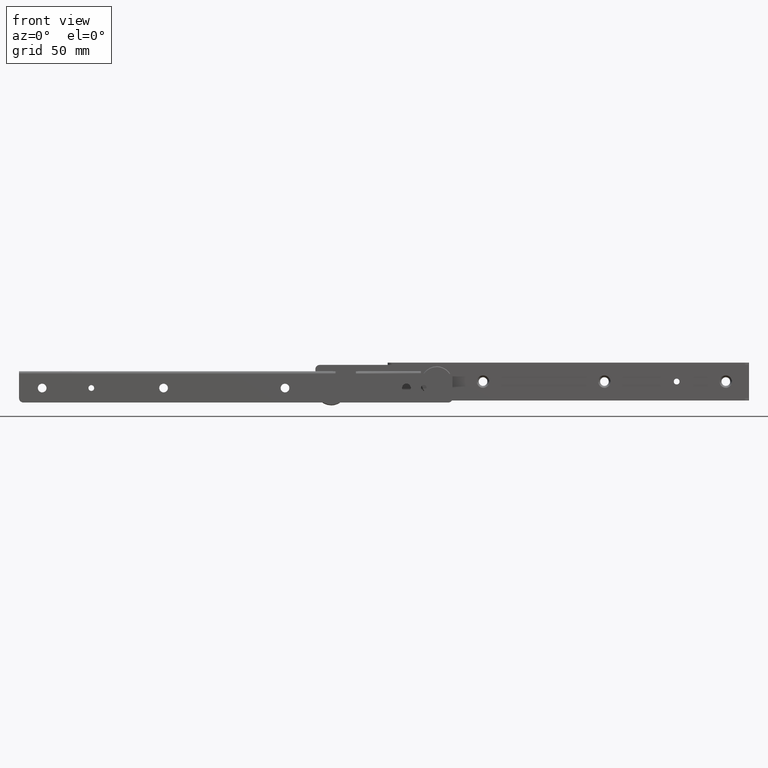
[diagram: clean part render]
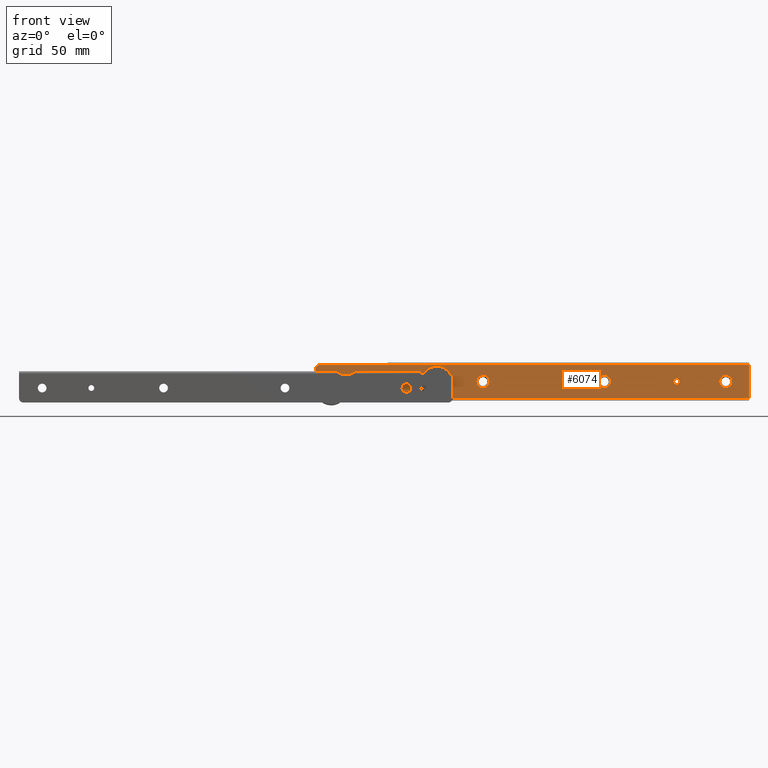
[diagram: same view with one face highlighted and labeled with its STEP entity id]
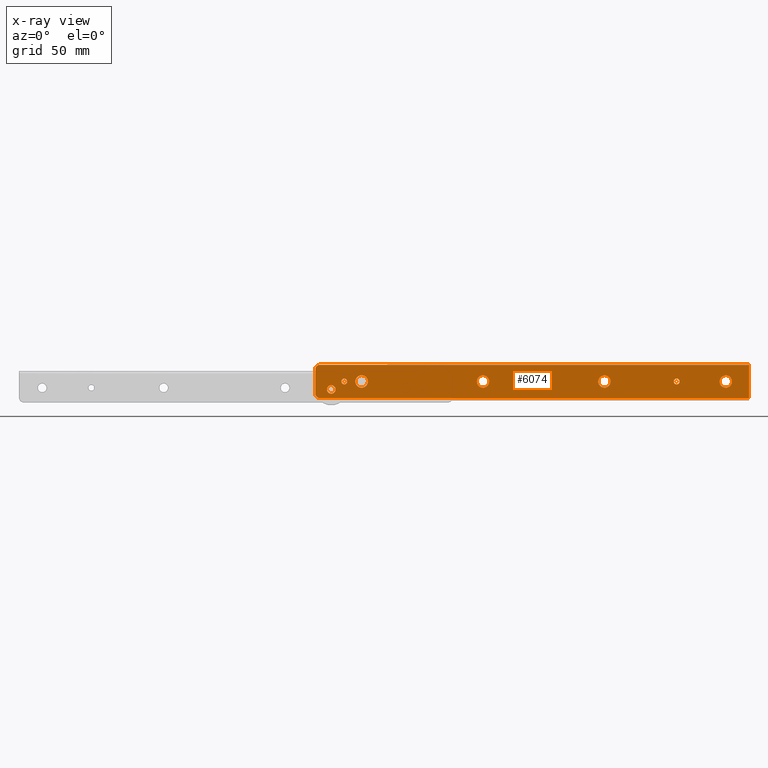
[diagram: x-ray of the same camera — body ghosted, the highlighted face saturated]
A machine part, front view. The second image highlights one B-rep face of the part: STEP entity #6074.
The next image is the same camera in x-ray: the body ghosted, the highlighted face saturated — about 0% of this face is hidden behind the body in this view.
In plain terms, the highlighted face is a freeform B-spline surface patch.
Its self-contained STEP definition (entity closure, byte-faithful):
#3986=CARTESIAN_POINT('',(27.733255280558421,-1.600000000138738,-7.633750409917559));
#3987=VERTEX_POINT('',#3986);
#3993=CARTESIAN_POINT('',(32.0,-1.599999999999910,-11.399999999999800));
#3994=VERTEX_POINT('',#3993);
#3995=CARTESIAN_POINT('',(32.0,-1.599999999999910,-11.399999999999800));
#3996=CARTESIAN_POINT('',(28.204396021076221,-1.599999999999910,-11.399999999999800));
#3997=CARTESIAN_POINT('',(27.733255280558421,-1.600000000138737,-7.633750409917559));
#4005=(BOUNDED_CURVE()B_SPLINE_CURVE(2,(#3995,#3996,#3997),.UNSPECIFIED.,.F.,.U.)B_SPLINE_CURVE_WITH_KNOTS((3,3),(0.500000000000000,0.728526070953370),.UNSPECIFIED.)CURVE()GEOMETRIC_REPRESENTATION_ITEM()RATIONAL_B_SPLINE_CURVE((1.0,0.732265053982704,0.954005430127370))REPRESENTATION_ITEM(''));
#4006=EDGE_CURVE('',#3994,#3987,#4005,.T.);
#4008=CARTESIAN_POINT('',(36.299836270378997,-1.600000001592581,-7.062475886927327));
#4009=VERTEX_POINT('',#4008);
#4010=CARTESIAN_POINT('',(36.299836270378997,-1.600000001592581,-7.062475886927328));
#4011=CARTESIAN_POINT('',(36.299999999999997,-1.599999999999910,-7.081237581052015));
#4012=CARTESIAN_POINT('',(36.299999999999997,-1.599999999999910,-7.099999999999799));
#4013=CARTESIAN_POINT('',(36.299999999999997,-1.599999999999911,-11.399999999999798));
#4014=CARTESIAN_POINT('',(32.0,-1.599999999999910,-11.399999999999800));
#4022=(BOUNDED_CURVE()B_SPLINE_CURVE(2,(#4010,#4011,#4012,#4013,#4014),.UNSPECIFIED.,.F.,.U.)B_SPLINE_CURVE_WITH_KNOTS((3,2,3),(0.248460104811452,0.250000000000000,0.500000000000000),.UNSPECIFIED.)CURVE()GEOMETRIC_REPRESENTATION_ITEM()RATIONAL_B_SPLINE_CURVE((0.996414026125027,0.998195900566363,1.0,0.707106781186547,1.0))REPRESENTATION_ITEM(''));
#4023=EDGE_CURVE('',#4009,#3994,#4022,.T.);
#4103=CARTESIAN_POINT('',(32.0,-1.599999999999910,-2.799999999999799));
#4104=VERTEX_POINT('',#4103);
#4105=CARTESIAN_POINT('',(32.0,-1.599999999999910,-2.799999999999799));
#4106=CARTESIAN_POINT('',(36.262638184901519,-1.599999999999911,-2.799999999999799));
#4107=CARTESIAN_POINT('',(36.299836270378997,-1.600000001592581,-7.062475886927328));
#4115=(BOUNDED_CURVE()B_SPLINE_CURVE(2,(#4105,#4106,#4107),.UNSPECIFIED.,.F.,.U.)B_SPLINE_CURVE_WITH_KNOTS((3,3),(0.0,0.248460104811452),.UNSPECIFIED.)CURVE()GEOMETRIC_REPRESENTATION_ITEM()RATIONAL_B_SPLINE_CURVE((1.0,0.708910880620184,0.996414026125027))REPRESENTATION_ITEM(''));
#4116=EDGE_CURVE('',#4104,#4009,#4115,.T.);
#4118=CARTESIAN_POINT('',(27.733255280558421,-1.600000000138738,-7.633750409917559));
#4119=CARTESIAN_POINT('',(27.700000000000003,-1.599999999999910,-7.367911189365561));
#4120=CARTESIAN_POINT('',(27.699999999999999,-1.599999999999910,-7.099999999999799));
#4121=CARTESIAN_POINT('',(27.700000000000006,-1.599999999999911,-2.799999999999800));
#4122=CARTESIAN_POINT('',(32.0,-1.599999999999910,-2.799999999999799));
#4130=(BOUNDED_CURVE()B_SPLINE_CURVE(2,(#4118,#4119,#4120,#4121,#4122),.UNSPECIFIED.,.F.,.U.)B_SPLINE_CURVE_WITH_KNOTS((3,2,3),(0.728526070953371,0.750000000000000,1.0),.UNSPECIFIED.)CURVE()GEOMETRIC_REPRESENTATION_ITEM()RATIONAL_B_SPLINE_CURVE((0.954005430127371,0.974841727203844,1.0,0.707106781186547,1.0))REPRESENTATION_ITEM(''));
#4131=EDGE_CURVE('',#3987,#4104,#4130,.T.);
#4172=CARTESIAN_POINT('',(111.733255280558400,-1.600000000138738,-7.633750409917761));
#4173=VERTEX_POINT('',#4172);
#4179=CARTESIAN_POINT('',(116.0,-1.599999999999910,-11.400000000000000));
#4180=VERTEX_POINT('',#4179);
#4181=CARTESIAN_POINT('',(116.0,-1.599999999999910,-11.400000000000000));
#4182=CARTESIAN_POINT('',(112.204396021076210,-1.599999999999910,-11.399999999999999));
#4183=CARTESIAN_POINT('',(111.733255280558450,-1.600000000138738,-7.633750409917761));
#4191=(BOUNDED_CURVE()B_SPLINE_CURVE(2,(#4181,#4182,#4183),.UNSPECIFIED.,.F.,.U.)B_SPLINE_CURVE_WITH_KNOTS((3,3),(0.500000000000000,0.728526070953370),.UNSPECIFIED.)CURVE()GEOMETRIC_REPRESENTATION_ITEM()RATIONAL_B_SPLINE_CURVE((1.0,0.732265053982704,0.954005430127370))REPRESENTATION_ITEM(''));
#4192=EDGE_CURVE('',#4180,#4173,#4191,.T.);
#4194=CARTESIAN_POINT('',(120.299836270379000,-1.600000001592574,-7.062475886927530));
#4195=VERTEX_POINT('',#4194);
#4196=CARTESIAN_POINT('',(120.299836270378990,-1.600000001592575,-7.062475886927530));
#4197=CARTESIAN_POINT('',(120.299999999999970,-1.599999999999910,-7.081237581052218));
#4198=CARTESIAN_POINT('',(120.300000000000000,-1.599999999999910,-7.100000000000001));
#4199=CARTESIAN_POINT('',(120.299999999999980,-1.599999999999911,-11.399999999999999));
#4200=CARTESIAN_POINT('',(116.0,-1.599999999999910,-11.400000000000000));
#4208=(BOUNDED_CURVE()B_SPLINE_CURVE(2,(#4196,#4197,#4198,#4199,#4200),.UNSPECIFIED.,.F.,.U.)B_SPLINE_CURVE_WITH_KNOTS((3,2,3),(0.248460104811452,0.250000000000000,0.500000000000000),.UNSPECIFIED.)CURVE()GEOMETRIC_REPRESENTATION_ITEM()RATIONAL_B_SPLINE_CURVE((0.996414026125027,0.998195900566364,1.0,0.707106781186547,1.0))REPRESENTATION_ITEM(''));
#4209=EDGE_CURVE('',#4195,#4180,#4208,.T.);
#4289=CARTESIAN_POINT('',(116.0,-1.599999999999910,-2.800000000000000));
#4290=VERTEX_POINT('',#4289);
#4291=CARTESIAN_POINT('',(116.0,-1.599999999999910,-2.800000000000000));
#4292=CARTESIAN_POINT('',(120.262638184901530,-1.599999999999911,-2.800000000000001));
#4293=CARTESIAN_POINT('',(120.299836270379020,-1.600000001592574,-7.062475886927530));
#4301=(BOUNDED_CURVE()B_SPLINE_CURVE(2,(#4291,#4292,#4293),.UNSPECIFIED.,.F.,.U.)B_SPLINE_CURVE_WITH_KNOTS((3,3),(0.0,0.248460104811452),.UNSPECIFIED.)CURVE()GEOMETRIC_REPRESENTATION_ITEM()RATIONAL_B_SPLINE_CURVE((1.0,0.708910880620184,0.996414026125027))REPRESENTATION_ITEM(''));
#4302=EDGE_CURVE('',#4290,#4195,#4301,.T.);
#4304=CARTESIAN_POINT('',(111.733255280558420,-1.600000000138738,-7.633750409917761));
#4305=CARTESIAN_POINT('',(111.700000000000030,-1.599999999999910,-7.367911189365764));
#4306=CARTESIAN_POINT('',(111.700000000000000,-1.599999999999910,-7.100000000000001));
#4307=CARTESIAN_POINT('',(111.699999999999990,-1.599999999999911,-2.800000000000000));
#4308=CARTESIAN_POINT('',(116.0,-1.599999999999910,-2.800000000000000));
#4316=(BOUNDED_CURVE()B_SPLINE_CURVE(2,(#4304,#4305,#4306,#4307,#4308),.UNSPECIFIED.,.F.,.U.)B_SPLINE_CURVE_WITH_KNOTS((3,2,3),(0.728526070953370,0.750000000000000,1.0),.UNSPECIFIED.)CURVE()GEOMETRIC_REPRESENTATION_ITEM()RATIONAL_B_SPLINE_CURVE((0.954005430127371,0.974841727203844,1.0,0.707106781186547,1.0))REPRESENTATION_ITEM(''));
#4317=EDGE_CURVE('',#4173,#4290,#4316,.T.);
#4358=CARTESIAN_POINT('',(195.733255280558410,-1.600000000138730,-7.633750409917758));
#4359=VERTEX_POINT('',#4358);
#4365=CARTESIAN_POINT('',(200.0,-1.599999999999910,-11.400000000000000));
#4366=VERTEX_POINT('',#4365);
#4367=CARTESIAN_POINT('',(200.0,-1.599999999999910,-11.400000000000000));
#4368=CARTESIAN_POINT('',(196.204396021076290,-1.599999999999910,-11.399999999999999));
#4369=CARTESIAN_POINT('',(195.733255280558380,-1.600000000138730,-7.633750409917758));
#4377=(BOUNDED_CURVE()B_SPLINE_CURVE(2,(#4367,#4368,#4369),.UNSPECIFIED.,.F.,.U.)B_SPLINE_CURVE_WITH_KNOTS((3,3),(0.500000000000000,0.728526070953370),.UNSPECIFIED.)CURVE()GEOMETRIC_REPRESENTATION_ITEM()RATIONAL_B_SPLINE_CURVE((1.0,0.732265053982704,0.954005430127370))REPRESENTATION_ITEM(''));
#4378=EDGE_CURVE('',#4366,#4359,#4377,.T.);
#4380=CARTESIAN_POINT('',(204.299836270378990,-1.600000001592586,-7.062475886927528));
#4381=VERTEX_POINT('',#4380);
#4382=CARTESIAN_POINT('',(204.299836270379050,-1.600000001592586,-7.062475886927528));
#4383=CARTESIAN_POINT('',(204.300000000000070,-1.599999999999910,-7.081237581052217));
#4384=CARTESIAN_POINT('',(204.300000000000010,-1.599999999999910,-7.100000000000001));
#4385=CARTESIAN_POINT('',(204.300000000000100,-1.599999999999911,-11.399999999999999));
#4386=CARTESIAN_POINT('',(200.0,-1.599999999999910,-11.400000000000000));
#4394=(BOUNDED_CURVE()B_SPLINE_CURVE(2,(#4382,#4383,#4384,#4385,#4386),.UNSPECIFIED.,.F.,.U.)B_SPLINE_CURVE_WITH_KNOTS((3,2,3),(0.248460104811452,0.250000000000000,0.500000000000000),.UNSPECIFIED.)CURVE()GEOMETRIC_REPRESENTATION_ITEM()RATIONAL_B_SPLINE_CURVE((0.996414026125027,0.998195900566363,1.0,0.707106781186547,1.0))REPRESENTATION_ITEM(''));
#4395=EDGE_CURVE('',#4381,#4366,#4394,.T.);
#4475=CARTESIAN_POINT('',(200.0,-1.599999999999910,-2.800000000000000));
#4476=VERTEX_POINT('',#4475);
#4477=CARTESIAN_POINT('',(200.0,-1.599999999999910,-2.800000000000000));
#4478=CARTESIAN_POINT('',(204.262638184901590,-1.599999999999911,-2.800000000000001));
#4479=CARTESIAN_POINT('',(204.299836270379050,-1.600000001592586,-7.062475886927528));
#4487=(BOUNDED_CURVE()B_SPLINE_CURVE(2,(#4477,#4478,#4479),.UNSPECIFIED.,.F.,.U.)B_SPLINE_CURVE_WITH_KNOTS((3,3),(0.0,0.248460104811452),.UNSPECIFIED.)CURVE()GEOMETRIC_REPRESENTATION_ITEM()RATIONAL_B_SPLINE_CURVE((1.0,0.708910880620184,0.996414026125027))REPRESENTATION_ITEM(''));
#4488=EDGE_CURVE('',#4476,#4381,#4487,.T.);
#4490=CARTESIAN_POINT('',(195.733255280558380,-1.600000000138730,-7.633750409917758));
#4491=CARTESIAN_POINT('',(195.700000000000020,-1.599999999999910,-7.367911189365762));
#4492=CARTESIAN_POINT('',(195.699999999999990,-1.599999999999910,-7.100000000000001));
#4493=CARTESIAN_POINT('',(195.699999999999960,-1.599999999999911,-2.800000000000000));
#4494=CARTESIAN_POINT('',(200.0,-1.599999999999910,-2.800000000000000));
#4502=(BOUNDED_CURVE()B_SPLINE_CURVE(2,(#4490,#4491,#4492,#4493,#4494),.UNSPECIFIED.,.F.,.U.)B_SPLINE_CURVE_WITH_KNOTS((3,2,3),(0.728526070953371,0.750000000000000,1.0),.UNSPECIFIED.)CURVE()GEOMETRIC_REPRESENTATION_ITEM()RATIONAL_B_SPLINE_CURVE((0.954005430127371,0.974841727203844,1.0,0.707106781186547,1.0))REPRESENTATION_ITEM(''));
#4503=EDGE_CURVE('',#4359,#4476,#4502,.T.);
#4544=CARTESIAN_POINT('',(279.733255280558410,-1.600000000138756,-7.633750409917766));
#4545=VERTEX_POINT('',#4544);
#4551=CARTESIAN_POINT('',(284.0,-1.599999999999910,-11.400000000000000));
#4552=VERTEX_POINT('',#4551);
#4553=CARTESIAN_POINT('',(284.0,-1.599999999999910,-11.400000000000000));
#4554=CARTESIAN_POINT('',(280.204396021076210,-1.599999999999910,-11.399999999999999));
#4555=CARTESIAN_POINT('',(279.733255280558300,-1.600000000138756,-7.633750409917766));
#4563=(BOUNDED_CURVE()B_SPLINE_CURVE(2,(#4553,#4554,#4555),.UNSPECIFIED.,.F.,.U.)B_SPLINE_CURVE_WITH_KNOTS((3,3),(0.500000000000000,0.728526070953370),.UNSPECIFIED.)CURVE()GEOMETRIC_REPRESENTATION_ITEM()RATIONAL_B_SPLINE_CURVE((1.0,0.732265053982704,0.954005430127370))REPRESENTATION_ITEM(''));
#4564=EDGE_CURVE('',#4552,#4545,#4563,.T.);
#4566=CARTESIAN_POINT('',(288.299836270379100,-1.600000001592579,-7.062475886927529));
#4567=VERTEX_POINT('',#4566);
#4568=CARTESIAN_POINT('',(288.299836270379050,-1.600000001592580,-7.062475886927529));
#4569=CARTESIAN_POINT('',(288.299999999999950,-1.599999999999910,-7.081237581052218));
#4570=CARTESIAN_POINT('',(288.300000000000010,-1.599999999999910,-7.100000000000001));
#4571=CARTESIAN_POINT('',(288.299999999999950,-1.599999999999911,-11.399999999999999));
#4572=CARTESIAN_POINT('',(284.0,-1.599999999999910,-11.400000000000000));
#4580=(BOUNDED_CURVE()B_SPLINE_CURVE(2,(#4568,#4569,#4570,#4571,#4572),.UNSPECIFIED.,.F.,.U.)B_SPLINE_CURVE_WITH_KNOTS((3,2,3),(0.248460104811452,0.250000000000000,0.500000000000000),.UNSPECIFIED.)CURVE()GEOMETRIC_REPRESENTATION_ITEM()RATIONAL_B_SPLINE_CURVE((0.996414026125027,0.998195900566364,1.0,0.707106781186547,1.0))REPRESENTATION_ITEM(''));
#4581=EDGE_CURVE('',#4567,#4552,#4580,.T.);
#4661=CARTESIAN_POINT('',(284.0,-1.599999999999910,-2.800000000000000));
#4662=VERTEX_POINT('',#4661);
#4663=CARTESIAN_POINT('',(284.0,-1.599999999999910,-2.800000000000000));
#4664=CARTESIAN_POINT('',(288.262638184901450,-1.599999999999911,-2.800000000000001));
#4665=CARTESIAN_POINT('',(288.299836270379100,-1.600000001592579,-7.062475886927529));
#4673=(BOUNDED_CURVE()B_SPLINE_CURVE(2,(#4663,#4664,#4665),.UNSPECIFIED.,.F.,.U.)B_SPLINE_CURVE_WITH_KNOTS((3,3),(0.0,0.248460104811452),.UNSPECIFIED.)CURVE()GEOMETRIC_REPRESENTATION_ITEM()RATIONAL_B_SPLINE_CURVE((1.0,0.708910880620184,0.996414026125027))REPRESENTATION_ITEM(''));
#4674=EDGE_CURVE('',#4662,#4567,#4673,.T.);
#4676=CARTESIAN_POINT('',(279.733255280558410,-1.600000000138756,-7.633750409917766));
#4677=CARTESIAN_POINT('',(279.699999999999870,-1.599999999999910,-7.367911189365770));
#4678=CARTESIAN_POINT('',(279.699999999999870,-1.599999999999910,-7.100000000000001));
#4679=CARTESIAN_POINT('',(279.699999999999990,-1.599999999999911,-2.800000000000000));
#4680=CARTESIAN_POINT('',(284.0,-1.599999999999910,-2.800000000000000));
#4688=(BOUNDED_CURVE()B_SPLINE_CURVE(2,(#4676,#4677,#4678,#4679,#4680),.UNSPECIFIED.,.F.,.U.)B_SPLINE_CURVE_WITH_KNOTS((3,2,3),(0.728526070953370,0.750000000000000,1.0),.UNSPECIFIED.)CURVE()GEOMETRIC_REPRESENTATION_ITEM()RATIONAL_B_SPLINE_CURVE((0.954005430127370,0.974841727203843,1.0,0.707106781186547,1.0))REPRESENTATION_ITEM(''));
#4689=EDGE_CURVE('',#4545,#4662,#4688,.T.);
#4730=CARTESIAN_POINT('',(8.072814670328325,-1.599999999999935,-12.966177615037809));
#4731=VERTEX_POINT('',#4730);
#4737=CARTESIAN_POINT('',(11.0,-1.599999999999935,-15.549999999999800));
#4738=VERTEX_POINT('',#4737);
#4739=CARTESIAN_POINT('',(11.0,-1.599999999999935,-15.549999999999800));
#4740=CARTESIAN_POINT('',(8.396039145519250,-1.599999999999935,-15.549999999999793));
#4741=CARTESIAN_POINT('',(8.072814670328325,-1.599999999999935,-12.966177615037806));
#4749=(BOUNDED_CURVE()B_SPLINE_CURVE(2,(#4739,#4740,#4741),.UNSPECIFIED.,.F.,.U.)B_SPLINE_CURVE_WITH_KNOTS((3,3),(0.500000000000000,0.728526070003485),.UNSPECIFIED.)CURVE()GEOMETRIC_REPRESENTATION_ITEM()RATIONAL_B_SPLINE_CURVE((1.0,0.732265055095563,0.954005428284011))REPRESENTATION_ITEM(''));
#4750=EDGE_CURVE('',#4738,#4731,#4749,.T.);
#4752=CARTESIAN_POINT('',(13.949887672999830,-1.599999999999935,-12.574256715756380));
#4753=VERTEX_POINT('',#4752);
#4754=CARTESIAN_POINT('',(13.949887672999830,-1.599999999999935,-12.574256715756375));
#4755=CARTESIAN_POINT('',(13.950000000000001,-1.599999999999935,-12.587128110555254));
#4756=CARTESIAN_POINT('',(13.949999999999999,-1.599999999999935,-12.599999999999801));
#4757=CARTESIAN_POINT('',(13.949999999999999,-1.599999999999935,-15.549999999999795));
#4758=CARTESIAN_POINT('',(11.0,-1.599999999999935,-15.549999999999800));
#4766=(BOUNDED_CURVE()B_SPLINE_CURVE(2,(#4754,#4755,#4756,#4757,#4758),.UNSPECIFIED.,.F.,.U.)B_SPLINE_CURVE_WITH_KNOTS((3,2,3),(0.248460105124835,0.250000000000000,0.500000000000000),.UNSPECIFIED.)CURVE()GEOMETRIC_REPRESENTATION_ITEM()RATIONAL_B_SPLINE_CURVE((0.996414026850282,0.998195900933514,1.0,0.707106781186548,1.0))REPRESENTATION_ITEM(''));
#4767=EDGE_CURVE('',#4753,#4738,#4766,.T.);
#4847=CARTESIAN_POINT('',(11.0,-1.599999999999935,-9.649999999999800));
#4848=VERTEX_POINT('',#4847);
#4849=CARTESIAN_POINT('',(11.0,-1.599999999999935,-9.649999999999800));
#4850=CARTESIAN_POINT('',(13.924368062286664,-1.599999999999935,-9.649999999999798));
#4851=CARTESIAN_POINT('',(13.949887672999830,-1.599999999999935,-12.574256715756375));
#4859=(BOUNDED_CURVE()B_SPLINE_CURVE(2,(#4849,#4850,#4851),.UNSPECIFIED.,.F.,.U.)B_SPLINE_CURVE_WITH_KNOTS((3,3),(0.0,0.248460105124835),.UNSPECIFIED.)CURVE()GEOMETRIC_REPRESENTATION_ITEM()RATIONAL_B_SPLINE_CURVE((1.0,0.708910880253034,0.996414026850282))REPRESENTATION_ITEM(''));
#4860=EDGE_CURVE('',#4848,#4753,#4859,.T.);
#4862=CARTESIAN_POINT('',(8.072814670328325,-1.599999999999935,-12.966177615037807));
#4863=CARTESIAN_POINT('',(8.050000000000001,-1.599999999999935,-12.783799545230332));
#4864=CARTESIAN_POINT('',(8.050000000000001,-1.599999999999935,-12.599999999999801));
#4865=CARTESIAN_POINT('',(8.050000000000001,-1.599999999999935,-9.649999999999800));
#4866=CARTESIAN_POINT('',(11.0,-1.599999999999935,-9.649999999999800));
#4874=(BOUNDED_CURVE()B_SPLINE_CURVE(2,(#4862,#4863,#4864,#4865,#4866),.UNSPECIFIED.,.F.,.U.)B_SPLINE_CURVE_WITH_KNOTS((3,2,3),(0.728526070003486,0.750000000000000,1.0),.UNSPECIFIED.)CURVE()GEOMETRIC_REPRESENTATION_ITEM()RATIONAL_B_SPLINE_CURVE((0.954005428284012,0.974841726090985,1.0,0.707106781186548,1.0))REPRESENTATION_ITEM(''));
#4875=EDGE_CURVE('',#4731,#4848,#4874,.T.);
#4916=CARTESIAN_POINT('',(18.015467572536661,-1.599999999999935,-7.348256005660190));
#4917=VERTEX_POINT('',#4916);
#4923=CARTESIAN_POINT('',(20.0,-1.599999999999935,-9.099999999999799));
#4924=VERTEX_POINT('',#4923);
#4925=CARTESIAN_POINT('',(20.0,-1.599999999999935,-9.099999999999799));
#4926=CARTESIAN_POINT('',(18.234602802390405,-1.599999999999935,-9.099999999999799));
#4927=CARTESIAN_POINT('',(18.015467572536657,-1.599999999999935,-7.348256005660190));
#4935=(BOUNDED_CURVE()B_SPLINE_CURVE(2,(#4925,#4926,#4927),.UNSPECIFIED.,.F.,.U.)B_SPLINE_CURVE_WITH_KNOTS((3,3),(0.500000000000000,0.728526070774233),.UNSPECIFIED.)CURVE()GEOMETRIC_REPRESENTATION_ITEM()RATIONAL_B_SPLINE_CURVE((1.0,0.732265054192576,0.954005429779735))REPRESENTATION_ITEM(''));
#4936=EDGE_CURVE('',#4924,#4917,#4935,.T.);
#4938=CARTESIAN_POINT('',(21.999923846086428,-1.599999999999935,-7.082546924200468));
#4939=VERTEX_POINT('',#4938);
#4940=CARTESIAN_POINT('',(21.999923846086435,-1.599999999999935,-7.082546924200468));
#4941=CARTESIAN_POINT('',(21.999999999999996,-1.599999999999935,-7.091273293555538));
#4942=CARTESIAN_POINT('',(22.0,-1.599999999999935,-7.099999999999799));
#4943=CARTESIAN_POINT('',(22.000000000000007,-1.599999999999935,-9.099999999999799));
#4944=CARTESIAN_POINT('',(20.0,-1.599999999999935,-9.099999999999799));
#4952=(BOUNDED_CURVE()B_SPLINE_CURVE(2,(#4940,#4941,#4942,#4943,#4944),.UNSPECIFIED.,.F.,.U.)B_SPLINE_CURVE_WITH_KNOTS((3,2,3),(0.248460104819040,0.250000000000000,0.500000000000000),.UNSPECIFIED.)CURVE()GEOMETRIC_REPRESENTATION_ITEM()RATIONAL_B_SPLINE_CURVE((0.996414026142589,0.998195900575254,1.0,0.707106781186548,1.0))REPRESENTATION_ITEM(''));
#4953=EDGE_CURVE('',#4939,#4924,#4952,.T.);
#5033=CARTESIAN_POINT('',(20.0,-1.599999999999935,-5.099999999999799));
#5034=VERTEX_POINT('',#5033);
#5035=CARTESIAN_POINT('',(20.0,-1.599999999999935,-5.099999999999799));
#5036=CARTESIAN_POINT('',(21.982622411667528,-1.599999999999935,-5.099999999999799));
#5037=CARTESIAN_POINT('',(21.999923846086435,-1.599999999999935,-7.082546924200468));
#5045=(BOUNDED_CURVE()B_SPLINE_CURVE(2,(#5035,#5036,#5037),.UNSPECIFIED.,.F.,.U.)B_SPLINE_CURVE_WITH_KNOTS((3,3),(0.0,0.248460104819040),.UNSPECIFIED.)CURVE()GEOMETRIC_REPRESENTATION_ITEM()RATIONAL_B_SPLINE_CURVE((1.0,0.708910880611294,0.996414026142589))REPRESENTATION_ITEM(''));
#5046=EDGE_CURVE('',#5034,#4939,#5045,.T.);
#5048=CARTESIAN_POINT('',(18.015467572536661,-1.599999999999935,-7.348256005660190));
#5049=CARTESIAN_POINT('',(17.999999999999996,-1.599999999999935,-7.224609856585088));
#5050=CARTESIAN_POINT('',(18.0,-1.599999999999935,-7.099999999999799));
#5051=CARTESIAN_POINT('',(18.000000000000007,-1.599999999999935,-5.099999999999798));
#5052=CARTESIAN_POINT('',(20.0,-1.599999999999935,-5.099999999999799));
#5060=(BOUNDED_CURVE()B_SPLINE_CURVE(2,(#5048,#5049,#5050,#5051,#5052),.UNSPECIFIED.,.F.,.U.)B_SPLINE_CURVE_WITH_KNOTS((3,2,3),(0.728526070774234,0.750000000000000,1.0),.UNSPECIFIED.)CURVE()GEOMETRIC_REPRESENTATION_ITEM()RATIONAL_B_SPLINE_CURVE((0.954005429779736,0.974841726993972,1.0,0.707106781186548,1.0))REPRESENTATION_ITEM(''));
#5061=EDGE_CURVE('',#4917,#5034,#5060,.T.);
#5102=CARTESIAN_POINT('',(248.015467572536610,-1.599999999999935,-7.348256005660391));
#5103=VERTEX_POINT('',#5102);
#5109=CARTESIAN_POINT('',(250.0,-1.599999999999935,-9.100000000000000));
#5110=VERTEX_POINT('',#5109);
#5111=CARTESIAN_POINT('',(250.0,-1.599999999999935,-9.100000000000000));
#5112=CARTESIAN_POINT('',(248.234602802390410,-1.599999999999935,-9.100000000000000));
#5113=CARTESIAN_POINT('',(248.015467572536610,-1.599999999999935,-7.348256005660391));
#5121=(BOUNDED_CURVE()B_SPLINE_CURVE(2,(#5111,#5112,#5113),.UNSPECIFIED.,.F.,.U.)B_SPLINE_CURVE_WITH_KNOTS((3,3),(0.500000000000000,0.728526070774233),.UNSPECIFIED.)CURVE()GEOMETRIC_REPRESENTATION_ITEM()RATIONAL_B_SPLINE_CURVE((1.0,0.732265054192576,0.954005429779735))REPRESENTATION_ITEM(''));
#5122=EDGE_CURVE('',#5110,#5103,#5121,.T.);
#5124=CARTESIAN_POINT('',(251.999923846086400,-1.599999999999935,-7.082546924200670));
#5125=VERTEX_POINT('',#5124);
#5126=CARTESIAN_POINT('',(251.999923846086380,-1.599999999999935,-7.082546924200670));
#5127=CARTESIAN_POINT('',(252.000000000000030,-1.599999999999935,-7.091273293555742));
#5128=CARTESIAN_POINT('',(252.0,-1.599999999999935,-7.100000000000001));
#5129=CARTESIAN_POINT('',(252.0,-1.599999999999935,-9.100000000000000));
#5130=CARTESIAN_POINT('',(250.0,-1.599999999999935,-9.100000000000000));
#5138=(BOUNDED_CURVE()B_SPLINE_CURVE(2,(#5126,#5127,#5128,#5129,#5130),.UNSPECIFIED.,.F.,.U.)B_SPLINE_CURVE_WITH_KNOTS((3,2,3),(0.248460104819041,0.250000000000000,0.500000000000000),.UNSPECIFIED.)CURVE()GEOMETRIC_REPRESENTATION_ITEM()RATIONAL_B_SPLINE_CURVE((0.996414026142589,0.998195900575254,1.0,0.707106781186548,1.0))REPRESENTATION_ITEM(''));
#5139=EDGE_CURVE('',#5125,#5110,#5138,.T.);
#5219=CARTESIAN_POINT('',(250.0,-1.599999999999935,-5.100000000000001));
#5220=VERTEX_POINT('',#5219);
#5221=CARTESIAN_POINT('',(250.0,-1.599999999999935,-5.100000000000001));
#5222=CARTESIAN_POINT('',(251.982622411667590,-1.599999999999935,-5.100000000000001));
#5223=CARTESIAN_POINT('',(251.999923846086430,-1.599999999999935,-7.082546924200670));
#5231=(BOUNDED_CURVE()B_SPLINE_CURVE(2,(#5221,#5222,#5223),.UNSPECIFIED.,.F.,.U.)B_SPLINE_CURVE_WITH_KNOTS((3,3),(0.0,0.248460104819040),.UNSPECIFIED.)CURVE()GEOMETRIC_REPRESENTATION_ITEM()RATIONAL_B_SPLINE_CURVE((1.0,0.708910880611294,0.996414026142589))REPRESENTATION_ITEM(''));
#5232=EDGE_CURVE('',#5220,#5125,#5231,.T.);
#5234=CARTESIAN_POINT('',(248.015467572536660,-1.599999999999935,-7.348256005660391));
#5235=CARTESIAN_POINT('',(248.000000000000030,-1.599999999999936,-7.224609856585288));
#5236=CARTESIAN_POINT('',(248.0,-1.599999999999935,-7.100000000000001));
#5237=CARTESIAN_POINT('',(248.000000000000030,-1.599999999999935,-5.100000000000001));
#5238=CARTESIAN_POINT('',(250.0,-1.599999999999935,-5.100000000000001));
#5246=(BOUNDED_CURVE()B_SPLINE_CURVE(2,(#5234,#5235,#5236,#5237,#5238),.UNSPECIFIED.,.F.,.U.)B_SPLINE_CURVE_WITH_KNOTS((3,2,3),(0.728526070774234,0.750000000000000,1.0),.UNSPECIFIED.)CURVE()GEOMETRIC_REPRESENTATION_ITEM()RATIONAL_B_SPLINE_CURVE((0.954005429779736,0.974841726993972,1.0,0.707106781186548,1.0))REPRESENTATION_ITEM(''));
#5247=EDGE_CURVE('',#5103,#5220,#5246,.T.);
#5511=CARTESIAN_POINT('',(3.0,-1.599999999999910,4.400000000000205));
#5512=VERTEX_POINT('',#5511);
#5513=CARTESIAN_POINT('',(0.0,-1.599999999999910,1.400000000000204));
#5514=VERTEX_POINT('',#5513);
#5515=CARTESIAN_POINT('',(3.0,-1.599999999999910,4.400000000000204));
#5516=CARTESIAN_POINT('',(0.0,-1.599999999999911,4.400000000000205));
#5517=CARTESIAN_POINT('',(0.0,-1.599999999999910,1.400000000000204));
#5525=(BOUNDED_CURVE()B_SPLINE_CURVE(2,(#5515,#5516,#5517),.UNSPECIFIED.,.F.,.U.)CURVE()GEOMETRIC_REPRESENTATION_ITEM()QUASI_UNIFORM_CURVE()RATIONAL_B_SPLINE_CURVE((1.0,0.707106781186548,1.0))REPRESENTATION_ITEM(''));
#5526=EDGE_CURVE('',#5512,#5514,#5525,.T.);
#5591=CARTESIAN_POINT('',(3.0,-1.599999999999910,-18.600000000000001));
#5592=VERTEX_POINT('',#5591);
#5598=CARTESIAN_POINT('',(0.0,-1.599999999999910,-15.600000000000000));
#5599=VERTEX_POINT('',#5598);
#5600=CARTESIAN_POINT('',(0.0,-1.599999999999910,-15.600000000000000));
#5601=CARTESIAN_POINT('',(0.0,-1.599999999999911,-18.599999999999991));
#5602=CARTESIAN_POINT('',(3.0,-1.599999999999910,-18.600000000000001));
#5610=(BOUNDED_CURVE()B_SPLINE_CURVE(2,(#5600,#5601,#5602),.UNSPECIFIED.,.F.,.U.)CURVE()GEOMETRIC_REPRESENTATION_ITEM()QUASI_UNIFORM_CURVE()RATIONAL_B_SPLINE_CURVE((1.0,0.707106781186548,1.0))REPRESENTATION_ITEM(''));
#5611=EDGE_CURVE('',#5599,#5592,#5610,.T.);
#5634=CARTESIAN_POINT('',(50.0,-1.599999999999935,4.400000000000205));
#5635=VERTEX_POINT('',#5634);
#5636=CARTESIAN_POINT('',(50.0,-1.599999999999935,4.400000000000205));
#5637=CARTESIAN_POINT('',(3.0,-1.599999999999910,4.400000000000205));
#5638=QUASI_UNIFORM_CURVE('',1,(#5636,#5637),.UNSPECIFIED.,.F.,.U.);
#5639=EDGE_CURVE('',#5635,#5512,#5638,.T.);
#5689=CARTESIAN_POINT('',(22.0,-1.599999999999935,-18.600000000000001));
#5690=VERTEX_POINT('',#5689);
#5691=CARTESIAN_POINT('',(3.0,-1.599999999999910,-18.600000000000001));
#5692=CARTESIAN_POINT('',(22.0,-1.599999999999935,-18.600000000000001));
#5693=QUASI_UNIFORM_CURVE('',1,(#5691,#5692),.UNSPECIFIED.,.F.,.U.);
#5694=EDGE_CURVE('',#5592,#5690,#5693,.T.);
#5758=CARTESIAN_POINT('',(0.0,-1.599999999999910,1.400000000000204));
#5759=CARTESIAN_POINT('',(0.0,-1.599999999999910,-15.600000000000000));
#5760=QUASI_UNIFORM_CURVE('',1,(#5758,#5759),.UNSPECIFIED.,.F.,.U.);
#5761=EDGE_CURVE('',#5514,#5599,#5760,.T.);
#5780=CARTESIAN_POINT('',(300.0,-1.599999999999910,4.400000000000205));
#5781=VERTEX_POINT('',#5780);
#5787=CARTESIAN_POINT('',(300.0,-1.599999999999910,-18.600000000000001));
#5788=VERTEX_POINT('',#5787);
#5789=CARTESIAN_POINT('',(300.0,-1.599999999999910,4.400000000000205));
#5790=CARTESIAN_POINT('',(300.0,-1.599999999999910,-18.600000000000001));
#5791=QUASI_UNIFORM_CURVE('',1,(#5789,#5790),.UNSPECIFIED.,.F.,.U.);
#5792=EDGE_CURVE('',#5781,#5788,#5791,.T.);
#6003=CARTESIAN_POINT('',(300.0,-1.599999999999910,-18.600000000000001));
#6004=CARTESIAN_POINT('',(22.0,-1.599999999999935,-18.600000000000001));
#6005=QUASI_UNIFORM_CURVE('',1,(#6003,#6004),.UNSPECIFIED.,.F.,.U.);
#6006=EDGE_CURVE('',#5788,#5690,#6005,.T.);
#6013=CARTESIAN_POINT('',(-14.984999418541790,-1.599999999999910,-19.748850387236629));
#6014=CARTESIAN_POINT('',(-14.984999418541790,-1.599999999999910,5.548850592872863));
#6015=CARTESIAN_POINT('',(314.985007465168910,-1.599999999999910,-19.748850387236629));
#6016=CARTESIAN_POINT('',(314.985007465168910,-1.599999999999910,5.548850592872863));
#6017=B_SPLINE_SURFACE_WITH_KNOTS('',1,1,((#6013,#6015),(#6014,#6016)),.UNSPECIFIED.,.F.,.F.,.U.,(2,2),(2,2),(0.0,25.297700980109500),(0.0,329.970006883710710),.UNSPECIFIED.);
#6018=ORIENTED_EDGE('',*,*,#5761,.T.);
#6019=ORIENTED_EDGE('',*,*,#5611,.T.);
#6020=ORIENTED_EDGE('',*,*,#5694,.T.);
#6021=ORIENTED_EDGE('',*,*,#6006,.F.);
#6022=ORIENTED_EDGE('',*,*,#5792,.F.);
#6023=CARTESIAN_POINT('',(300.0,-1.599999999999910,4.400000000000205));
#6024=CARTESIAN_POINT('',(50.0,-1.599999999999935,4.400000000000205));
#6025=QUASI_UNIFORM_CURVE('',1,(#6023,#6024),.UNSPECIFIED.,.F.,.U.);
#6026=EDGE_CURVE('',#5781,#5635,#6025,.T.);
#6027=ORIENTED_EDGE('',*,*,#6026,.T.);
#6028=ORIENTED_EDGE('',*,*,#5639,.T.);
#6029=ORIENTED_EDGE('',*,*,#5526,.T.);
#6030=EDGE_LOOP('',(#6018,#6019,#6020,#6021,#6022,#6027,#6028,#6029));
#6031=FACE_OUTER_BOUND('',#6030,.T.);
#6032=ORIENTED_EDGE('',*,*,#5232,.T.);
#6033=ORIENTED_EDGE('',*,*,#5139,.T.);
#6034=ORIENTED_EDGE('',*,*,#5122,.T.);
#6035=ORIENTED_EDGE('',*,*,#5247,.T.);
#6036=EDGE_LOOP('',(#6032,#6033,#6034,#6035));
#6037=FACE_BOUND('',#6036,.T.);
#6038=ORIENTED_EDGE('',*,*,#5046,.T.);
#6039=ORIENTED_EDGE('',*,*,#4953,.T.);
#6040=ORIENTED_EDGE('',*,*,#4936,.T.);
#6041=ORIENTED_EDGE('',*,*,#5061,.T.);
#6042=EDGE_LOOP('',(#6038,#6039,#6040,#6041));
#6043=FACE_BOUND('',#6042,.T.);
#6044=ORIENTED_EDGE('',*,*,#4860,.T.);
#6045=ORIENTED_EDGE('',*,*,#4767,.T.);
#6046=ORIENTED_EDGE('',*,*,#4750,.T.);
#6047=ORIENTED_EDGE('',*,*,#4875,.T.);
#6048=EDGE_LOOP('',(#6044,#6045,#6046,#6047));
#6049=FACE_BOUND('',#6048,.T.);
#6050=ORIENTED_EDGE('',*,*,#4674,.T.);
#6051=ORIENTED_EDGE('',*,*,#4581,.T.);
#6052=ORIENTED_EDGE('',*,*,#4564,.T.);
#6053=ORIENTED_EDGE('',*,*,#4689,.T.);
#6054=EDGE_LOOP('',(#6050,#6051,#6052,#6053));
#6055=FACE_BOUND('',#6054,.T.);
#6056=ORIENTED_EDGE('',*,*,#4488,.T.);
#6057=ORIENTED_EDGE('',*,*,#4395,.T.);
#6058=ORIENTED_EDGE('',*,*,#4378,.T.);
#6059=ORIENTED_EDGE('',*,*,#4503,.T.);
#6060=EDGE_LOOP('',(#6056,#6057,#6058,#6059));
#6061=FACE_BOUND('',#6060,.T.);
#6062=ORIENTED_EDGE('',*,*,#4302,.T.);
#6063=ORIENTED_EDGE('',*,*,#4209,.T.);
#6064=ORIENTED_EDGE('',*,*,#4192,.T.);
#6065=ORIENTED_EDGE('',*,*,#4317,.T.);
#6066=EDGE_LOOP('',(#6062,#6063,#6064,#6065));
#6067=FACE_BOUND('',#6066,.T.);
#6068=ORIENTED_EDGE('',*,*,#4116,.T.);
#6069=ORIENTED_EDGE('',*,*,#4023,.T.);
#6070=ORIENTED_EDGE('',*,*,#4006,.T.);
#6071=ORIENTED_EDGE('',*,*,#4131,.T.);
#6072=EDGE_LOOP('',(#6068,#6069,#6070,#6071));
#6073=FACE_BOUND('',#6072,.T.);
#6074=ADVANCED_FACE('',(#6031,#6037,#6043,#6049,#6055,#6061,#6067,#6073),#6017,.F.);